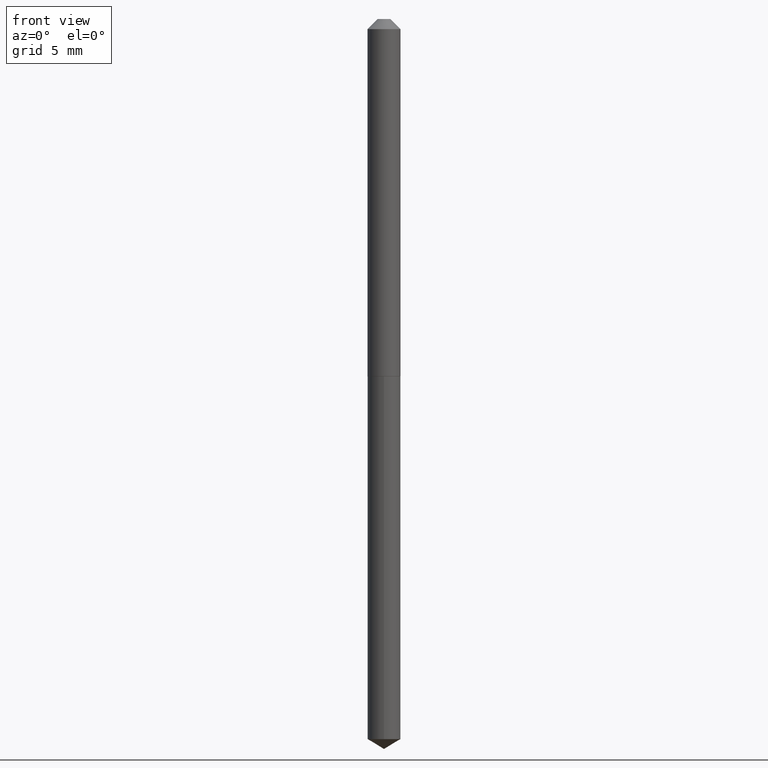
[diagram: clean part render]
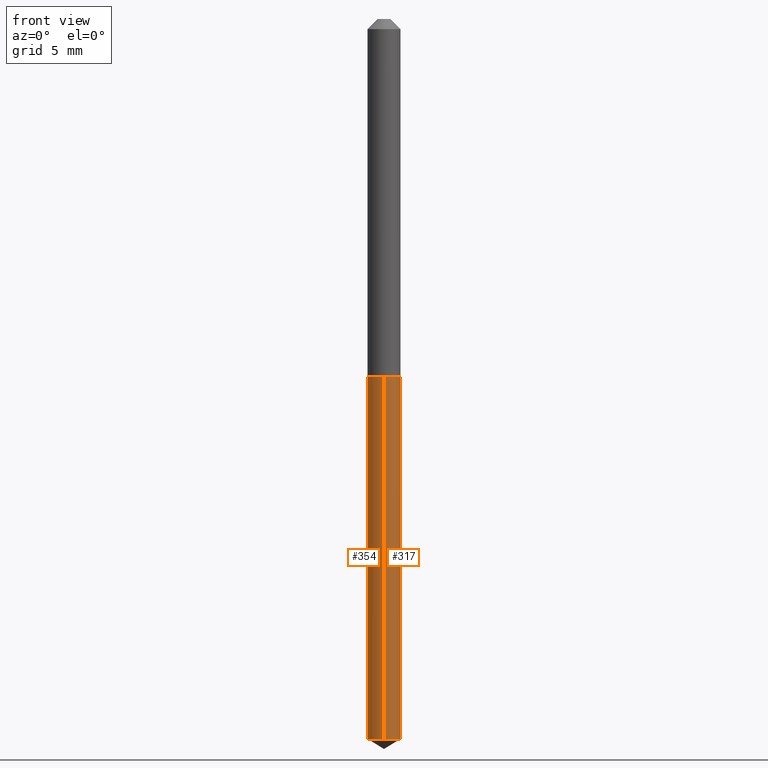
[diagram: same view with one multi-face feature highlighted, each face labeled with its STEP entity id]
A machine part, front view. The highlighted faces form ONE feature: a constant-radius fillet chain: 2 tangent blend faces with common blend radius 1.2891 mm. The faces share edges in the B-rep.
Their STEP definitions:
[1] entity #354 (Cylinder):
#37 = VERTEX_POINT ( 'NONE', #193 ) ;
#40 = DIRECTION ( 'NONE',  ( -2.445399240766827348E-29, 3.491580960481582281E-15, 1.000000000000000000 ) ) ;
#61 = EDGE_LOOP ( 'NONE', ( #100, #113, #146, #286 ) ) ;
#69 = EDGE_CURVE ( 'NONE', #37, #237, #255, .T. ) ;
#100 = ORIENTED_EDGE ( 'NONE', *, *, #69, .F. ) ;
#113 = ORIENTED_EDGE ( 'NONE', *, *, #136, .T. ) ;
#115 = CARTESIAN_POINT ( 'NONE',  ( -3.543853558925511236E-16, -0.05075000000000384759, -1.101499999999999924 ) ) ;
#129 = AXIS2_PLACEMENT_3D ( 'NONE', #218, #40, #241 ) ;
#135 = CARTESIAN_POINT ( 'NONE',  ( 3.606004383982777887E-16, 0.05074999999999616623, -1.101500000000000146 ) ) ;
#136 = EDGE_CURVE ( 'NONE', #37, #198, #380, .T. ) ;
#146 = ORIENTED_EDGE ( 'NONE', *, *, #216, .T. ) ;
#149 = CARTESIAN_POINT ( 'NONE',  ( -3.543853558925511236E-16, -0.05075000000000384759, -1.101499999999999924 ) ) ;
#164 = DIRECTION ( 'NONE',  ( -2.445399240766827348E-29, 3.491580960481582281E-15, 1.000000000000000000 ) ) ;
#176 = LINE ( 'NONE', #115, #299 ) ;
#179 = AXIS2_PLACEMENT_3D ( 'NONE', #217, #273, #333 ) ;
#193 = CARTESIAN_POINT ( 'NONE',  ( 3.606004383983051030E-16, 0.05074999999999225270, -2.219506323584351737 ) ) ;
#198 = VERTEX_POINT ( 'NONE', #201 ) ;
#201 = CARTESIAN_POINT ( 'NONE',  ( -3.543853558925237600E-16, -0.05075000000000774725, -2.219506323584350849 ) ) ;
#211 = DIRECTION ( 'NONE',  ( -2.445399240766827348E-29, 3.491580960481582281E-15, 1.000000000000000000 ) ) ;
#212 = FACE_OUTER_BOUND ( 'NONE', #61, .T. ) ;
#214 = CIRCLE ( 'NONE', #179, 0.05075000000000000344 ) ;
#216 = EDGE_CURVE ( 'NONE', #198, #347, #176, .T. ) ;
#217 = CARTESIAN_POINT ( 'NONE',  ( 2.693683890012927652E-29, -3.845866694735724612E-15, -1.101499999999999924 ) ) ;
#218 = CARTESIAN_POINT ( 'NONE',  ( 2.693683890012927652E-29, -3.845866694735724612E-15, -1.101499999999999924 ) ) ;
#237 = VERTEX_POINT ( 'NONE', #293 ) ;
#241 = DIRECTION ( 'NONE',  ( -6.982962677686266711E-15, -1.000000000000000000, 2.691475855826860001E-15 ) ) ;
#242 = CYLINDRICAL_SURFACE ( 'NONE', #129, 0.05075000000000000344 ) ;
#255 = LINE ( 'NONE', #135, #372 ) ;
#273 = DIRECTION ( 'NONE',  ( -2.445399240766827348E-29, 3.491580960481582281E-15, 1.000000000000000000 ) ) ;
#286 = ORIENTED_EDGE ( 'NONE', *, *, #374, .F. ) ;
#293 = CARTESIAN_POINT ( 'NONE',  ( 3.606004383983053002E-16, 0.05074999999999615929, -1.101500000000000146 ) ) ;
#295 = DIRECTION ( 'NONE',  ( -2.445399240766827348E-29, 3.491580960481582281E-15, 1.000000000000000000 ) ) ;
#299 = VECTOR ( 'NONE', #295, 39.37007874015748143 ) ;
#326 = DIRECTION ( 'NONE',  ( -6.982962677686266711E-15, -1.000000000000000000, 5.382951711653720002E-15 ) ) ;
#333 = DIRECTION ( 'NONE',  ( -6.982962677686266711E-15, -1.000000000000000000, 2.691475855826860001E-15 ) ) ;
#347 = VERTEX_POINT ( 'NONE', #149 ) ;
#354 = ADVANCED_FACE ( 'NONE', ( #212 ), #242, .T. ) ;
#363 = AXIS2_PLACEMENT_3D ( 'NONE', #381, #211, #326 ) ;
#372 = VECTOR ( 'NONE', #164, 39.37007874015748143 ) ;
#374 = EDGE_CURVE ( 'NONE', #237, #347, #214, .T. ) ;
#380 = CIRCLE ( 'NONE', #363, 0.05075000000000000344 ) ;
#381 = CARTESIAN_POINT ( 'NONE',  ( 5.427655704878611935E-29, -7.749476287860856663E-15, -2.219506323584351293 ) ) ;
[2] entity #317 (Cylinder):
#8 = CARTESIAN_POINT ( 'NONE',  ( 2.693683890012927652E-29, -3.845866694735724612E-15, -1.101499999999999924 ) ) ;
#9 = EDGE_LOOP ( 'NONE', ( #377, #41, #301, #298 ) ) ;
#32 = DIRECTION ( 'NONE',  ( -2.445399240766827348E-29, 3.491580960481582281E-15, 1.000000000000000000 ) ) ;
#34 = DIRECTION ( 'NONE',  ( -2.445399240766827348E-29, 3.491580960481582281E-15, 1.000000000000000000 ) ) ;
#37 = VERTEX_POINT ( 'NONE', #193 ) ;
#41 = ORIENTED_EDGE ( 'NONE', *, *, #69, .T. ) ;
#69 = EDGE_CURVE ( 'NONE', #37, #237, #255, .T. ) ;
#72 = FACE_OUTER_BOUND ( 'NONE', #9, .T. ) ;
#89 = CIRCLE ( 'NONE', #171, 0.05075000000000000344 ) ;
#115 = CARTESIAN_POINT ( 'NONE',  ( -3.543853558925511236E-16, -0.05075000000000384759, -1.101499999999999924 ) ) ;
#135 = CARTESIAN_POINT ( 'NONE',  ( 3.606004383982777887E-16, 0.05074999999999616623, -1.101500000000000146 ) ) ;
#142 = CARTESIAN_POINT ( 'NONE',  ( 5.427655704878611935E-29, -7.749476287860856663E-15, -2.219506323584351293 ) ) ;
#149 = CARTESIAN_POINT ( 'NONE',  ( -3.543853558925511236E-16, -0.05075000000000384759, -1.101499999999999924 ) ) ;
#164 = DIRECTION ( 'NONE',  ( -2.445399240766827348E-29, 3.491580960481582281E-15, 1.000000000000000000 ) ) ;
#171 = AXIS2_PLACEMENT_3D ( 'NONE', #142, #388, #239 ) ;
#176 = LINE ( 'NONE', #115, #299 ) ;
#193 = CARTESIAN_POINT ( 'NONE',  ( 3.606004383983051030E-16, 0.05074999999999225270, -2.219506323584351737 ) ) ;
#198 = VERTEX_POINT ( 'NONE', #201 ) ;
#201 = CARTESIAN_POINT ( 'NONE',  ( -3.543853558925237600E-16, -0.05075000000000774725, -2.219506323584350849 ) ) ;
#205 = AXIS2_PLACEMENT_3D ( 'NONE', #304, #34, #270 ) ;
#216 = EDGE_CURVE ( 'NONE', #198, #347, #176, .T. ) ;
#220 = CYLINDRICAL_SURFACE ( 'NONE', #256, 0.05075000000000000344 ) ;
#237 = VERTEX_POINT ( 'NONE', #293 ) ;
#239 = DIRECTION ( 'NONE',  ( -6.982962677686266711E-15, -1.000000000000000000, 5.382951711653720002E-15 ) ) ;
#255 = LINE ( 'NONE', #135, #372 ) ;
#256 = AXIS2_PLACEMENT_3D ( 'NONE', #8, #32, #369 ) ;
#270 = DIRECTION ( 'NONE',  ( -6.982962677686266711E-15, -1.000000000000000000, 2.691475855826860001E-15 ) ) ;
#275 = EDGE_CURVE ( 'NONE', #198, #37, #89, .T. ) ;
#293 = CARTESIAN_POINT ( 'NONE',  ( 3.606004383983053002E-16, 0.05074999999999615929, -1.101500000000000146 ) ) ;
#295 = DIRECTION ( 'NONE',  ( -2.445399240766827348E-29, 3.491580960481582281E-15, 1.000000000000000000 ) ) ;
#298 = ORIENTED_EDGE ( 'NONE', *, *, #216, .F. ) ;
#299 = VECTOR ( 'NONE', #295, 39.37007874015748143 ) ;
#301 = ORIENTED_EDGE ( 'NONE', *, *, #323, .F. ) ;
#304 = CARTESIAN_POINT ( 'NONE',  ( 2.693683890012927652E-29, -3.845866694735724612E-15, -1.101499999999999924 ) ) ;
#317 = ADVANCED_FACE ( 'NONE', ( #72 ), #220, .T. ) ;
#323 = EDGE_CURVE ( 'NONE', #347, #237, #353, .T. ) ;
#347 = VERTEX_POINT ( 'NONE', #149 ) ;
#353 = CIRCLE ( 'NONE', #205, 0.05075000000000000344 ) ;
#369 = DIRECTION ( 'NONE',  ( -6.982962677686266711E-15, -1.000000000000000000, 2.691475855826860001E-15 ) ) ;
#372 = VECTOR ( 'NONE', #164, 39.37007874015748143 ) ;
#377 = ORIENTED_EDGE ( 'NONE', *, *, #275, .T. ) ;
#388 = DIRECTION ( 'NONE',  ( -2.445399240766827348E-29, 3.491580960481582281E-15, 1.000000000000000000 ) ) ;